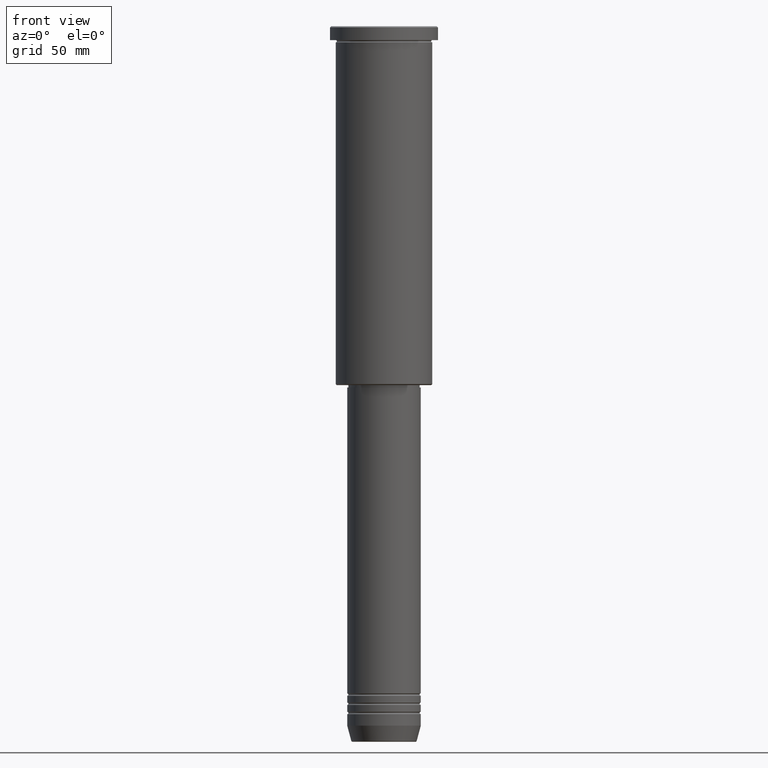
[diagram: clean part render]
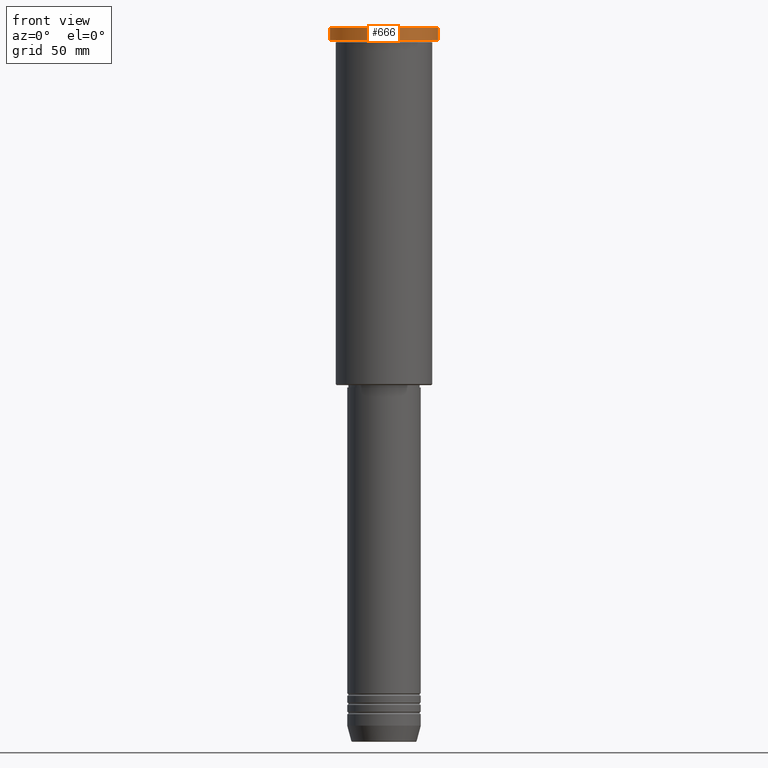
[diagram: same view with one face highlighted and labeled with its STEP entity id]
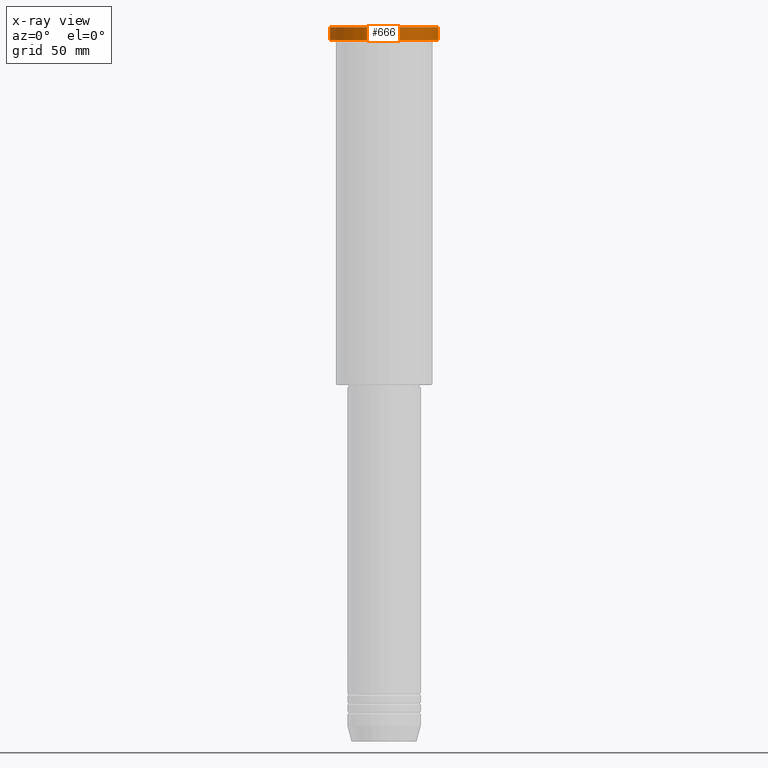
[diagram: x-ray of the same camera — body ghosted, the highlighted face saturated]
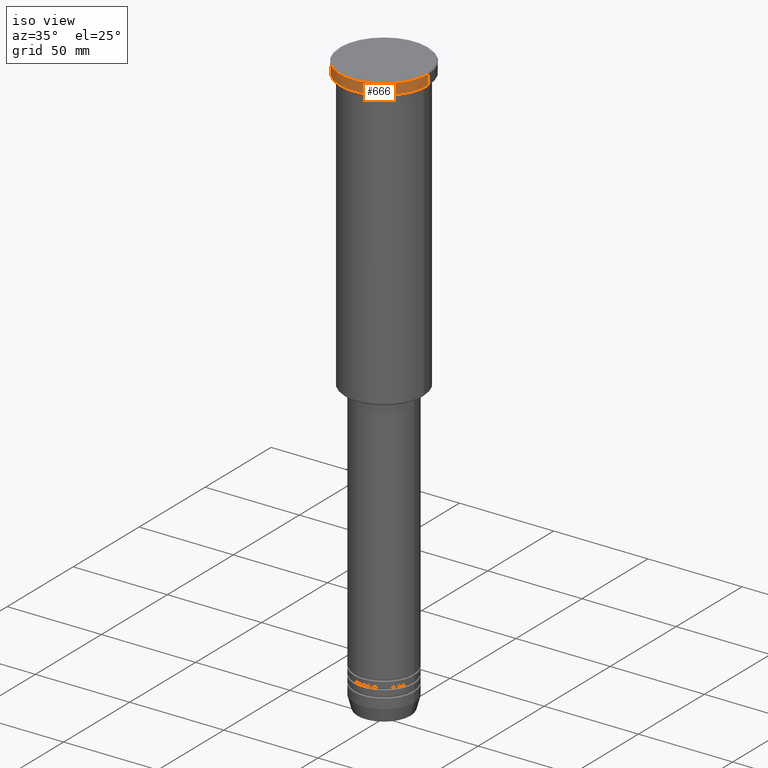
[diagram: same view with one face highlighted and labeled with its STEP entity id]
A machine part, front view. The second image highlights one B-rep face of the part: STEP entity #666.
The next image is the same camera in x-ray: the body ghosted, the highlighted face saturated — about 0% of this face is hidden behind the body in this view.
A second angle (iso view) of the same face is appended — the face is thin or edge-on in the first view.
In plain terms, the highlighted cylindrical surface (partial cylindrical patch) has radius 23.5 mm, axis along (-0, -0, 1).
Its self-contained STEP definition (entity closure, byte-faithful):
#61 = CARTESIAN_POINT ( 'NONE',  ( -23.50000000000000000, 2.877919977996280320E-15, 0.000000000000000000 ) ) ;
#112 = AXIS2_PLACEMENT_3D ( 'NONE', #1035, #215, #567 ) ;
#143 = ORIENTED_EDGE ( 'NONE', *, *, #430, .T. ) ;
#144 = LINE ( 'NONE', #61, #656 ) ;
#171 = EDGE_CURVE ( 'NONE', #848, #670, #545, .T. ) ;
#181 = DIRECTION ( 'NONE',  ( 1.000000000000000000, 0.000000000000000000, 0.000000000000000000 ) ) ;
#215 = DIRECTION ( 'NONE',  ( -0.000000000000000000, -0.000000000000000000, 1.000000000000000000 ) ) ;
#289 = CYLINDRICAL_SURFACE ( 'NONE', #851, 23.50000000000000000 ) ;
#310 = CARTESIAN_POINT ( 'NONE',  ( 23.50000000000000000, 0.000000000000000000, -5.999999999999993783 ) ) ;
#344 = FACE_OUTER_BOUND ( 'NONE', #880, .T. ) ;
#417 = CARTESIAN_POINT ( 'NONE',  ( -23.50000000000000000, 2.877919977996280320E-15, -0.4999999999999726885 ) ) ;
#419 = ORIENTED_EDGE ( 'NONE', *, *, #632, .T. ) ;
#430 = EDGE_CURVE ( 'NONE', #532, #848, #1086, .T. ) ;
#438 = CARTESIAN_POINT ( 'NONE',  ( 0.000000000000000000, 0.000000000000000000, 0.000000000000000000 ) ) ;
#445 = EDGE_CURVE ( 'NONE', #532, #1012, #144, .T. ) ;
#466 = CARTESIAN_POINT ( 'NONE',  ( 0.000000000000000000, 0.000000000000000000, -0.4999999999999726885 ) ) ;
#532 = VERTEX_POINT ( 'NONE', #1047 ) ;
#545 = LINE ( 'NONE', #617, #792 ) ;
#567 = DIRECTION ( 'NONE',  ( 1.000000000000000000, 0.000000000000000000, 0.000000000000000000 ) ) ;
#576 = AXIS2_PLACEMENT_3D ( 'NONE', #466, #737, #1105 ) ;
#617 = CARTESIAN_POINT ( 'NONE',  ( 23.50000000000000000, 0.000000000000000000, 0.000000000000000000 ) ) ;
#632 = EDGE_CURVE ( 'NONE', #670, #1012, #1140, .T. ) ;
#656 = VECTOR ( 'NONE', #858, 1000.000000000000000 ) ;
#666 = ADVANCED_FACE ( 'NONE', ( #344 ), #289, .T. ) ;
#670 = VERTEX_POINT ( 'NONE', #1164 ) ;
#737 = DIRECTION ( 'NONE',  ( 0.000000000000000000, 0.000000000000000000, -1.000000000000000000 ) ) ;
#792 = VECTOR ( 'NONE', #888, 1000.000000000000000 ) ;
#800 = DIRECTION ( 'NONE',  ( -0.000000000000000000, -0.000000000000000000, 1.000000000000000000 ) ) ;
#848 = VERTEX_POINT ( 'NONE', #310 ) ;
#851 = AXIS2_PLACEMENT_3D ( 'NONE', #438, #800, #181 ) ;
#858 = DIRECTION ( 'NONE',  ( -0.000000000000000000, -0.000000000000000000, 1.000000000000000000 ) ) ;
#880 = EDGE_LOOP ( 'NONE', ( #959, #143, #940, #419 ) ) ;
#888 = DIRECTION ( 'NONE',  ( -0.000000000000000000, -0.000000000000000000, 1.000000000000000000 ) ) ;
#940 = ORIENTED_EDGE ( 'NONE', *, *, #171, .T. ) ;
#959 = ORIENTED_EDGE ( 'NONE', *, *, #445, .F. ) ;
#1012 = VERTEX_POINT ( 'NONE', #417 ) ;
#1035 = CARTESIAN_POINT ( 'NONE',  ( 0.000000000000000000, 0.000000000000000000, -5.999999999999993783 ) ) ;
#1047 = CARTESIAN_POINT ( 'NONE',  ( -23.50000000000000000, 2.877919977996280320E-15, -5.999999999999993783 ) ) ;
#1086 = CIRCLE ( 'NONE', #112, 23.50000000000000000 ) ;
#1105 = DIRECTION ( 'NONE',  ( 1.000000000000000000, 0.000000000000000000, 0.000000000000000000 ) ) ;
#1140 = CIRCLE ( 'NONE', #576, 23.50000000000000000 ) ;
#1164 = CARTESIAN_POINT ( 'NONE',  ( 23.50000000000000000, 0.000000000000000000, -0.4999999999999726885 ) ) ;